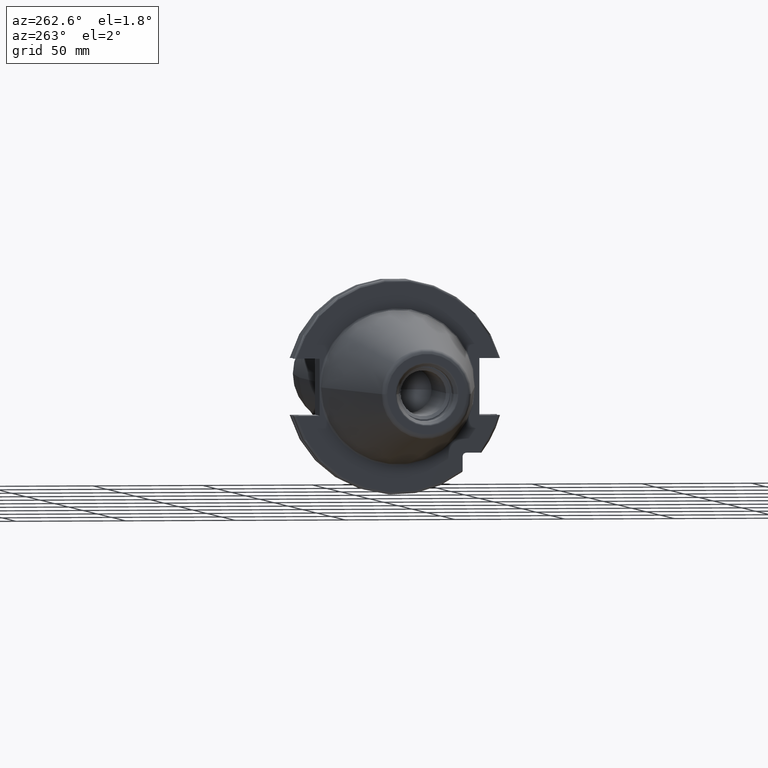
[diagram: clean part render]
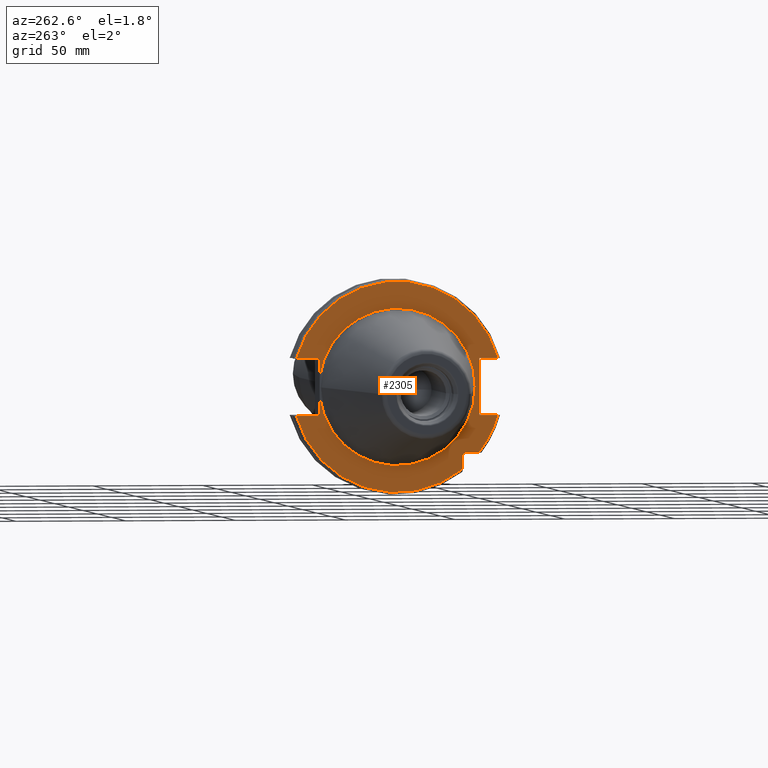
[diagram: same view with one face highlighted and labeled with its STEP entity id]
A machine part, auxiliary view. The second image highlights one B-rep face of the part: STEP entity #2305.
In plain terms, the highlighted planar face has unit normal (1, 0, 0).
Its self-contained STEP definition (entity closure, byte-faithful):
#117=CARTESIAN_POINT('',(3.2E0,0.E0,0.E0));
#118=DIRECTION('',(-1.E0,0.E0,0.E0));
#119=DIRECTION('',(0.E0,9.922698524245E-1,-1.240989120402E-1));
#120=AXIS2_PLACEMENT_3D('',#117,#118,#119);
#611=DIRECTION('',(0.E0,-1.E0,0.E0));
#612=VECTOR('',#611,5.653810627237E0);
#613=CARTESIAN_POINT('',(3.2E0,-3.16E1,-2.985E1));
#614=LINE('',#613,#612);
#615=DIRECTION('',(0.E0,0.E0,1.E0));
#616=VECTOR('',#615,5.653810627237E0);
#617=CARTESIAN_POINT('',(3.2E0,-2.985E1,-3.725381062724E1));
#618=LINE('',#617,#616);
#619=CARTESIAN_POINT('',(3.2E0,0.E0,0.E0));
#620=DIRECTION('',(-1.E0,0.E0,0.E0));
#621=DIRECTION('',(0.E0,9.627964123359E-1,-2.702278083268E-1));
#622=AXIS2_PLACEMENT_3D('',#619,#620,#621);
#624=DIRECTION('',(0.E0,-1.E0,0.E0));
#625=VECTOR('',#624,1.066149373389E1);
#626=CARTESIAN_POINT('',(3.2E0,4.596149373389E1,-1.29E1));
#627=LINE('',#626,#625);
#628=DIRECTION('',(0.E0,0.E0,-1.E0));
#629=VECTOR('',#628,8.485181204172E0);
#630=CARTESIAN_POINT('',(3.2E0,3.53E1,-4.414818795828E0));
#631=LINE('',#630,#629);
#632=DIRECTION('',(0.E0,0.E0,-1.E0));
#633=VECTOR('',#632,8.485181204172E0);
#634=CARTESIAN_POINT('',(3.2E0,3.53E1,1.29E1));
#635=LINE('',#634,#633);
#636=DIRECTION('',(0.E0,-1.E0,0.E0));
#637=VECTOR('',#636,1.066149373389E1);
#638=CARTESIAN_POINT('',(3.2E0,4.596149373389E1,1.29E1));
#639=LINE('',#638,#637);
#640=CARTESIAN_POINT('',(3.2E0,0.E0,0.E0));
#641=DIRECTION('',(1.E0,0.E0,0.E0));
#642=DIRECTION('',(0.E0,9.627964123359E-1,2.702278083268E-1));
#643=AXIS2_PLACEMENT_3D('',#640,#641,#642);
#645=DIRECTION('',(0.E0,1.E0,0.E0));
#646=VECTOR('',#645,8.461493733886E0);
#647=CARTESIAN_POINT('',(3.2E0,-4.596149373389E1,1.29E1));
#648=LINE('',#647,#646);
#649=DIRECTION('',(0.E0,0.E0,1.E0));
#650=VECTOR('',#649,2.58E1);
#651=CARTESIAN_POINT('',(3.2E0,-3.75E1,-1.29E1));
#652=LINE('',#651,#650);
#653=DIRECTION('',(0.E0,1.E0,0.E0));
#654=VECTOR('',#653,8.461493733886E0);
#655=CARTESIAN_POINT('',(3.2E0,-4.596149373389E1,-1.29E1));
#656=LINE('',#655,#654);
#657=CARTESIAN_POINT('',(3.2E0,0.E0,0.E0));
#658=DIRECTION('',(-1.E0,0.E0,0.E0));
#659=DIRECTION('',(0.E0,-7.803888060170E-1,-6.252945797329E-1));
#660=AXIS2_PLACEMENT_3D('',#657,#658,#659);
#671=CARTESIAN_POINT('',(3.2E0,-3.16E1,-3.16E1));
#672=DIRECTION('',(1.E0,0.E0,0.E0));
#673=DIRECTION('',(0.E0,1.E0,0.E0));
#674=AXIS2_PLACEMENT_3D('',#671,#672,#673);
#837=CARTESIAN_POINT('',(3.2E0,-3.725381062724E1,-2.985E1));
#1059=CARTESIAN_POINT('',(3.2E0,0.E0,0.E0));
#1060=DIRECTION('',(1.E0,0.E0,0.E0));
#1061=DIRECTION('',(0.E0,9.922698524245E-1,1.240989120402E-1));
#1062=AXIS2_PLACEMENT_3D('',#1059,#1060,#1061);
#1282=CARTESIAN_POINT('',(3.2E0,-3.5575E1,0.E0));
#1284=VERTEX_POINT('',#1282);
#1408=CARTESIAN_POINT('',(3.2E0,4.596149373389E1,1.29E1));
#1409=CARTESIAN_POINT('',(3.2E0,3.53E1,1.29E1));
#1410=VERTEX_POINT('',#1408);
#1411=VERTEX_POINT('',#1409);
#1412=CARTESIAN_POINT('',(3.2E0,3.53E1,4.414818795828E0));
#1413=VERTEX_POINT('',#1412);
#1414=CARTESIAN_POINT('',(3.2E0,3.53E1,-4.414818795828E0));
#1415=CARTESIAN_POINT('',(3.2E0,3.53E1,-1.29E1));
#1416=VERTEX_POINT('',#1414);
#1417=VERTEX_POINT('',#1415);
#1418=CARTESIAN_POINT('',(3.2E0,4.596149373389E1,-1.29E1));
#1419=VERTEX_POINT('',#1418);
#1420=CARTESIAN_POINT('',(3.2E0,-4.596149373389E1,-1.29E1));
#1421=CARTESIAN_POINT('',(3.2E0,-3.75E1,-1.29E1));
#1422=VERTEX_POINT('',#1420);
#1423=VERTEX_POINT('',#1421);
#1424=CARTESIAN_POINT('',(3.2E0,-3.75E1,1.29E1));
#1425=VERTEX_POINT('',#1424);
#1426=CARTESIAN_POINT('',(3.2E0,-4.596149373389E1,1.29E1));
#1427=VERTEX_POINT('',#1426);
#1461=CARTESIAN_POINT('',(3.2E0,-2.985E1,-3.725381062724E1));
#1462=VERTEX_POINT('',#1461);
#1467=CARTESIAN_POINT('',(3.2E0,-2.985E1,-3.16E1));
#1468=CARTESIAN_POINT('',(3.2E0,-3.16E1,-2.985E1));
#1469=VERTEX_POINT('',#1467);
#1470=VERTEX_POINT('',#1468);
#1489=VERTEX_POINT('',#837);
#2276=CARTESIAN_POINT('',(3.2E0,0.E0,0.E0));
#2277=DIRECTION('',(1.E0,0.E0,0.E0));
#2278=DIRECTION('',(0.E0,-1.E0,0.E0));
#2279=AXIS2_PLACEMENT_3D('',#2276,#2277,#2278);
#2280=PLANE('',#2279);
#2282=ORIENTED_EDGE('',*,*,#2281,.F.);
#2284=ORIENTED_EDGE('',*,*,#2283,.F.);
#2286=ORIENTED_EDGE('',*,*,#2285,.F.);
#2288=ORIENTED_EDGE('',*,*,#2287,.F.);
#2289=ORIENTED_EDGE('',*,*,#1711,.T.);
#2290=ORIENTED_EDGE('',*,*,#1696,.F.);
#2291=ORIENTED_EDGE('',*,*,#1673,.T.);
#2293=ORIENTED_EDGE('',*,*,#2292,.F.);
#2294=ORIENTED_EDGE('',*,*,#1691,.F.);
#2295=ORIENTED_EDGE('',*,*,#2032,.F.);
#2296=ORIENTED_EDGE('',*,*,#2271,.T.);
#2297=ORIENTED_EDGE('',*,*,#2073,.T.);
#2298=ORIENTED_EDGE('',*,*,#1812,.F.);
#2300=ORIENTED_EDGE('',*,*,#2299,.F.);
#2302=ORIENTED_EDGE('',*,*,#2301,.F.);
#2303=EDGE_LOOP('',(#2282,#2284,#2286,#2288,#2289,#2290,#2291,#2293,#2294,#2295,
#2296,#2297,#2298,#2300,#2302));
#2304=FACE_OUTER_BOUND('',#2303,.F.);
#2305=ADVANCED_FACE('',(#2304),#2280,.F.);
#121=CIRCLE('',#120,3.5575E1);
#623=CIRCLE('',#622,4.77375E1);
#644=CIRCLE('',#643,4.77375E1);
#661=CIRCLE('',#660,4.77375E1);
#675=CIRCLE('',#674,1.75E0);
#1063=CIRCLE('',#1062,3.5575E1);
#1673=EDGE_CURVE('',#1416,#1284,#121,.T.);
#1691=EDGE_CURVE('',#1411,#1413,#635,.T.);
#1696=EDGE_CURVE('',#1416,#1417,#631,.T.);
#1711=EDGE_CURVE('',#1419,#1417,#627,.T.);
#1812=EDGE_CURVE('',#1423,#1425,#652,.T.);
#2032=EDGE_CURVE('',#1410,#1411,#639,.T.);
#2073=EDGE_CURVE('',#1427,#1425,#648,.T.);
#2271=EDGE_CURVE('',#1410,#1427,#644,.T.);
#2281=EDGE_CURVE('',#1470,#1489,#614,.T.);
#2283=EDGE_CURVE('',#1469,#1470,#675,.T.);
#2285=EDGE_CURVE('',#1462,#1469,#618,.T.);
#2287=EDGE_CURVE('',#1419,#1462,#623,.T.);
#2292=EDGE_CURVE('',#1413,#1284,#1063,.T.);
#2299=EDGE_CURVE('',#1422,#1423,#656,.T.);
#2301=EDGE_CURVE('',#1489,#1422,#661,.T.);